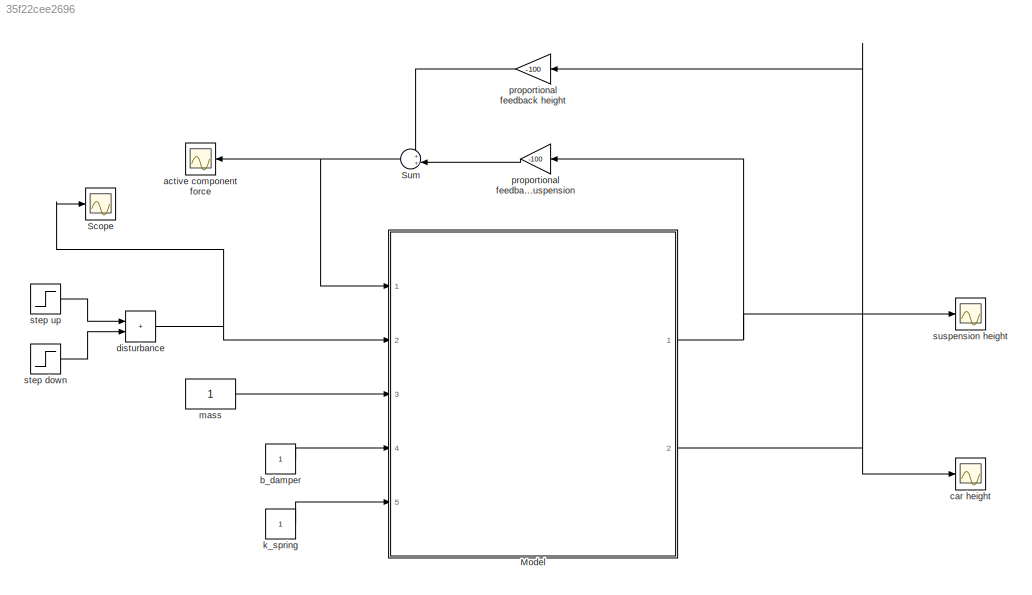
MODEL slx_35f22cee2696
KIND model
CONFIG AbsTol = auto
CONFIG EnableMultiTasking = off
CONFIG FixedStep = auto
CONFIG MaxStep = auto
CONFIG MinStep = auto
CONFIG RelTol = 1e-3
CONFIG SampleTimeConstraint = Unconstrained
CONFIG SolverName = VariableStepAuto
CONFIG StartTime = 0.0
CONFIG StopTime = 10.0
BLOCK [ModelReference] Model
  ModelNameDialog = quarter_suspension.slx
  ModelReferenceVersion = 6.1
  Ports = [5, 2]
BLOCK [Scope] Scope
  Floating = off
  NumInputPorts = 1
  Ports = [1]
  ScopeSpecificationString = Simulink.scopes.TimeScopeBlockCfg('CurrentConfiguration', extmgr.ConfigurationSet(extmgr.Configuration('Core','General UI',true),extmgr.Configuration('Core','Source UI',true),extmgr.Configuration('Sources','WiredSimulink',true,'DataLoggingVariableName','ScopeData1'),extmgr.Configuration('Visuals','Time Domain',true,'SerializedDisplays',{struct('MinYLimReal','-0.125','MaxYLimReal','1.125','YLabelRe...<+1358ch>
BLOCK [Sum] Sum
  Inputs = ++|
  Ports = [2, 1]
BLOCK [Scope] active component force
  Floating = off
  NumInputPorts = 1
  Ports = [1]
  ScopeSpecificationString = Simulink.scopes.TimeScopeBlockCfg('CurrentConfiguration', extmgr.ConfigurationSet(extmgr.Configuration('Core','General UI',true),extmgr.Configuration('Core','Source UI',true),extmgr.Configuration('Sources','WiredSimulink',true,'DataLoggingVariableName','ScopeData2'),extmgr.Configuration('Visuals','Time Domain',true,'SerializedDisplays',{struct('MinYLimReal','-5.21664','MaxYLimReal','3.81376','YLab...<+1391ch>
BLOCK [Constant] b_damper
BLOCK [Scope] car height
  Floating = off
  NumInputPorts = 1
  Ports = [1]
  ScopeSpecificationString = Simulink.scopes.TimeScopeBlockCfg('CurrentConfiguration', extmgr.ConfigurationSet(extmgr.Configuration('Core','General UI',true),extmgr.Configuration('Core','Source UI',true),extmgr.Configuration('Sources','WiredSimulink',true,'DataLoggingVariableName','ScopeData1'),extmgr.Configuration('Visuals','Time Domain',true,'SerializedDisplays',{struct('MinYLimReal','-0.69869','MaxYLimReal','1.13296','YLab...<+1394ch>
BLOCK [Sum] disturbance
  IconShape = rectangular
  Ports = [2, 1]
BLOCK [Constant] k_spring 
BLOCK [Constant] mass
BLOCK [Gain] proportional feedback height
  Gain = -100
BLOCK [Gain] proportional feedback suspension
  Gain = -100
BLOCK [Step] step down
  After = -1
  SampleTime = 0
BLOCK [Step] step up
  SampleTime = 0
  Time = 0
BLOCK [Scope] suspension height
  Floating = off
  NumInputPorts = 1
  Ports = [1]
  ScopeSpecificationString = Simulink.scopes.TimeScopeBlockCfg('CurrentConfiguration', extmgr.ConfigurationSet(extmgr.Configuration('Core','General UI',true),extmgr.Configuration('Core','Source UI',true),extmgr.Configuration('Sources','WiredSimulink',true),extmgr.Configuration('Visuals','Time Domain',true,'SerializedDisplays',{struct('MinYLimReal','-1.19319','MaxYLimReal','0.73875','YLabelReal','','MinYLimMag','0.00000','MaxY...<+1356ch>
NET Model:1 -> proportional feedback suspension:1, suspension height:1
NET Model:2 -> car height:1, proportional feedback height:1
NET Sum:1 -> Model:1, active component force:1
LINE b_damper:1 -> Model:4
NET disturbance:1 -> Model:2, Scope:1
LINE k_spring :1 -> Model:5
LINE mass:1 -> Model:3
LINE proportional feedback height:1 -> Sum:1
LINE proportional feedback suspension:1 -> Sum:2
LINE step down:1 -> disturbance:2
LINE step up:1 -> disturbance:1
note: NET lines group one-source signal fan-out (src -> all destinations, sorted); 1:1 wires keep LINE
